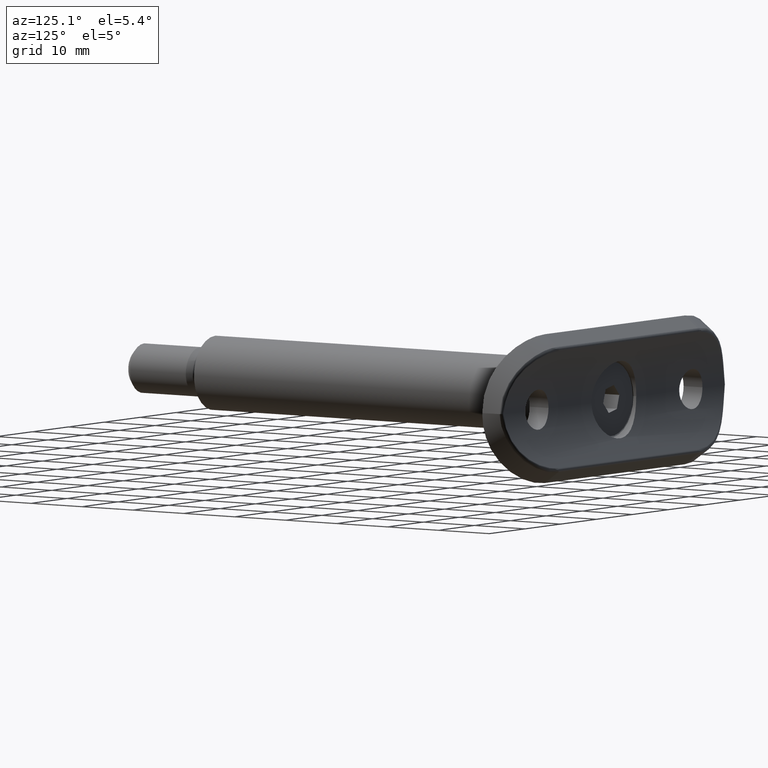
[diagram: clean part render]
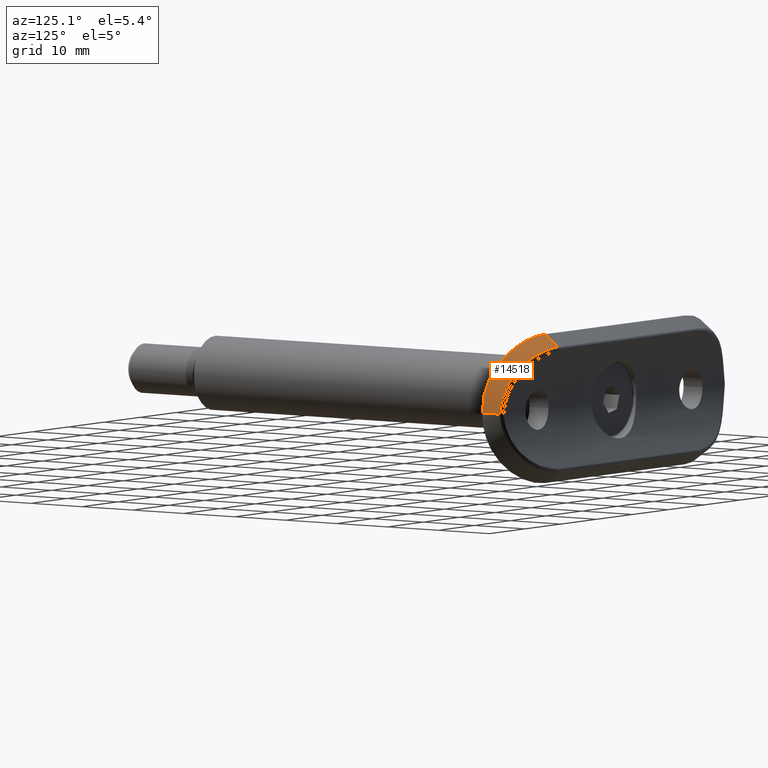
[diagram: same view with one face highlighted and labeled with its STEP entity id]
A machine part, auxiliary view. The second image highlights one B-rep face of the part: STEP entity #14518.
In plain terms, the highlighted cylindrical surface (partial cylindrical patch) has radius 12 mm, axis along (0, 0.8118, -0.5839).
Its self-contained STEP definition (entity closure, byte-faithful):
#63 = EDGE_CURVE ( 'NONE', #77, #2350, #12017, .T. ) ;
#77 = VERTEX_POINT ( 'NONE', #664 ) ;
#664 = CARTESIAN_POINT ( 'NONE',  ( -1.765561944424616200E-015, -0.4537595037555552400, -31.34933095981319400 ) ) ;
#761 = CARTESIAN_POINT ( 'NONE',  ( 9.837107706626532900, 2.578035596462832300, -22.39328904128677100 ) ) ;
#991 = CARTESIAN_POINT ( 'NONE',  ( 10.90931707614188000, -0.5682518415652126900, -25.02295538976314800 ) ) ;
#1107 =( BOUNDED_CURVE ( )  B_SPLINE_CURVE ( 3, ( #11669, #14079, #7178, #10538 ),
 .UNSPECIFIED., .F., .F. ) 
 B_SPLINE_CURVE_WITH_KNOTS ( ( 4, 4 ),
 ( 1.412163945685858100, 1.570796326794896300 ),
 .UNSPECIFIED. ) 
 CURVE ( )  GEOMETRIC_REPRESENTATION_ITEM ( )  RATIONAL_B_SPLINE_CURVE ( ( 1.000000000000000000, 0.9979040797806755200, 0.9979040797806755200, 1.000000000000000000 ) ) 
 REPRESENTATION_ITEM ( '' )  );
#1530 = CARTESIAN_POINT ( 'NONE',  ( 1.447866623082525900, -0.3756902404739376800, -31.09255130478878500 ) ) ;
#1677 = CARTESIAN_POINT ( 'NONE',  ( 0.3660558530732914700, -0.4477592449650887300, -31.30123139863309600 ) ) ;
#2075 = ORIENTED_EDGE ( 'NONE', *, *, #11212, .F. ) ;
#2172 = CARTESIAN_POINT ( 'NONE',  ( 4.407850644025226700, -3.225409069440152300, -30.87018340299276900 ) ) ;
#2350 = VERTEX_POINT ( 'NONE', #3120 ) ;
#2563 = EDGE_CURVE ( 'NONE', #77, #14623, #1107, .T. ) ;
#2701 = VECTOR ( 'NONE', #6541, 999.9999999999998900 ) ;
#2718 = CARTESIAN_POINT ( 'NONE',  ( 1.805319957109091400, -0.3375128656904836700, -31.00432257375955600 ) ) ;
#2772 = CARTESIAN_POINT ( 'NONE',  ( 4.477211699115462900, 0.1761482342743393400, -29.95618376487041300 ) ) ;
#3120 = CARTESIAN_POINT ( 'NONE',  ( 10.12717891536658900, 2.771195106964719800, -19.50000000000000400 ) ) ;
#3369 = CARTESIAN_POINT ( 'NONE',  ( 1.637081255389273500, -3.650515055562292900, -31.44438342167034500 ) ) ;
#3421 = CARTESIAN_POINT ( 'NONE',  ( 11.99999999999999800, 0.1675990936556158400, -20.32542637679249300 ) ) ;
#3948 = CARTESIAN_POINT ( 'NONE',  ( 5.389221191223337600, 0.4474550338448117200, -29.39592279680632800 ) ) ;
#4376 = CARTESIAN_POINT ( 'NONE',  ( 9.727451992068006700, -1.253927504700463900, -27.06368564966891200 ) ) ;
#4427 = CARTESIAN_POINT ( 'NONE',  ( 4.019515070331795700, -3.307021581829336000, -30.98658961672468600 ) ) ;
#4538 = CARTESIAN_POINT ( 'NONE',  ( 11.93188330489362200, 0.1179984964455191200, -21.13619040237307800 ) ) ;
#5133 = CARTESIAN_POINT ( 'NONE',  ( 7.670246256790052900, 1.359910319933143500, -27.23525308564032300 ) ) ;
#5238 = CARTESIAN_POINT ( 'NONE',  ( 9.670500822432899200, 2.470714829862250600, -23.09779996299899500 ) ) ;
#5436 = ORIENTED_EDGE ( 'NONE', *, *, #2563, .F. ) ;
#5615 = CARTESIAN_POINT ( 'NONE',  ( 0.8244347916045266000, -3.699999999999999700, -31.50000000000000000 ) ) ;
#5765 = CARTESIAN_POINT ( 'NONE',  ( 11.44009522695896800, -0.2216732215903579600, -23.50843907464543400 ) ) ;
#5789 = CARTESIAN_POINT ( 'NONE',  ( 11.99999999999999800, 0.1675990936556164000, -19.50000000000000400 ) ) ;
#5799 = DIRECTION ( 'NONE',  ( -0.8117956645423057800, -0.5839416058394163400, 0.0000000000000000000 ) ) ;
#6151 = CARTESIAN_POINT ( 'NONE',  ( 3.523794955830243900, -0.06293353954158373300, -30.43751904557932200 ) ) ;
#6301 = CARTESIAN_POINT ( 'NONE',  ( -1.765561944424616200E-015, -0.4537595037555552400, -31.34933095981319400 ) ) ;
#6354 = CARTESIAN_POINT ( 'NONE',  ( 8.276384315391478500, 1.663297702628007600, -26.36292557208185300 ) ) ;
#6541 = DIRECTION ( 'NONE',  ( -0.5839416058394163400, 0.8117956645423057800, 0.0000000000000000000 ) ) ;
#6784 = CARTESIAN_POINT ( 'NONE',  ( 5.532917837906414800, -2.956163349335260800, -30.46886078951180100 ) ) ;
#6834 = CARTESIAN_POINT ( 'NONE',  ( 7.234194564605609800, -2.387796973345365000, -29.50411977800343500 ) ) ;
#7178 = CARTESIAN_POINT ( 'NONE',  ( -8.799767882859470900E-016, -2.612227290229115700, -31.50000000000000000 ) ) ;
#7248 = EDGE_LOOP ( 'NONE', ( #5436, #10169, #2075, #10547 ) ) ;
#7694 = CARTESIAN_POINT ( 'NONE',  ( 9.906032413744753700, 2.623334164646682800, -22.03821986203081100 ) ) ;
#7993 = CARTESIAN_POINT ( 'NONE',  ( 8.992997745725382700, -1.630207549303576100, -27.97099985454206800 ) ) ;
#8041 = CARTESIAN_POINT ( 'NONE',  ( 9.952719643953837900, -1.130600070060816800, -26.73823856945869800 ) ) ;
#8624 = CARTESIAN_POINT ( 'NONE',  ( 0.7289297493280698600, -0.4307089018704906600, -31.24079200779241500 ) ) ;
#8686 = CARTESIAN_POINT ( 'NONE',  ( 5.677826046268699600, 0.5443253537524666000, -29.18976629026787600 ) ) ;
#8810 = CARTESIAN_POINT ( 'NONE',  ( -1.734723475976807100E-015, -3.699999999999998400, -31.50000000000000000 ) ) ;
#9068 = CARTESIAN_POINT ( 'NONE',  ( 10.57043074677839700, -0.7793199695854748900, -25.73359019163507700 ) ) ;
#9361 = AXIS2_PLACEMENT_3D ( 'NONE', #13522, #12398, #5799 ) ;
#9850 = CARTESIAN_POINT ( 'NONE',  ( 6.501984363770561400, 0.8417677089685812200, -28.53411875496052400 ) ) ;
#10169 = ORIENTED_EDGE ( 'NONE', *, *, #63, .T. ) ;
#10538 = CARTESIAN_POINT ( 'NONE',  ( -1.734723475976807100E-015, -3.699999999999998400, -31.50000000000000000 ) ) ;
#10547 = ORIENTED_EDGE ( 'NONE', *, *, #11654, .F. ) ;
#10999 = CARTESIAN_POINT ( 'NONE',  ( 8.959022801026893700, 2.035262522138844500, -25.13046673744611000 ) ) ;
#11144 = CARTESIAN_POINT ( 'NONE',  ( 10.12717891536658900, 2.771195106964719800, -19.50000000000000400 ) ) ;
#11212 = EDGE_CURVE ( 'NONE', #13258, #2350, #11961, .T. ) ;
#11228 = CARTESIAN_POINT ( 'NONE',  ( 11.99999999999999800, 0.1675990936556164000, -19.50000000000000400 ) ) ;
#11406 = CARTESIAN_POINT ( 'NONE',  ( 6.239551306538205100, -2.742501449227441800, -30.13005912226491700 ) ) ;
#11461 = CARTESIAN_POINT ( 'NONE',  ( 9.248077892315397000, -1.503434791643359200, -27.67913971635069000 ) ) ;
#11654 = EDGE_CURVE ( 'NONE', #14623, #13258, #12936, .T. ) ;
#11669 = CARTESIAN_POINT ( 'NONE',  ( -1.765561944424616200E-015, -0.4537595037555552400, -31.34933095981319400 ) ) ;
#11809 = CYLINDRICAL_SURFACE ( 'NONE', #9361, 11.99999999999999800 ) ;
#11961 = LINE ( 'NONE', #11228, #2701 ) ;
#12001 = CARTESIAN_POINT ( 'NONE',  ( 2.855553897046677400, -0.1948091586493474700, -30.69724926842520000 ) ) ;
#12017 = B_SPLINE_CURVE_WITH_KNOTS ( 'NONE', 3,
 ( #6301, #1677, #8624, #1530, #2718, #12001, #6151, #2772, #14252, #3948, #8686, #9850, #12048, #5133, #13232, #6354, #14453, #10999, #12348, #13476, #5238, #761, #7694, #12198, #12295, #11144 ),
 .UNSPECIFIED., .F., .F.,
 ( 4, 2, 2, 2, 2, 2, 2, 2, 2, 2, 2, 2, 4 ),
 ( 0.0000000000000000000, 0.001104099780465670300, 0.002208199560931341400, 0.004416399121862687100, 0.005520498902328359200, 0.006624598682794031200, 0.008832798243725372600, 0.009936898024191046300, 0.01104099780465672000, 0.01324919736558805700, 0.01435329714605372200, 0.01545739692651938700, 0.01766559648745072800 ),
 .UNSPECIFIED. ) ;
#12048 = CARTESIAN_POINT ( 'NONE',  ( 6.998838513618320400, 1.049969719537179100, -28.04597954356985000 ) ) ;
#12198 = CARTESIAN_POINT ( 'NONE',  ( 10.07148329003814900, 2.733007344359098800, -20.96472306259698800 ) ) ;
#12295 = CARTESIAN_POINT ( 'NONE',  ( 10.12717891536659600, 2.771195106964718900, -20.23807937200531600 ) ) ;
#12348 = CARTESIAN_POINT ( 'NONE',  ( 9.236289791145130900, 2.200570151001626200, -24.47770794052638300 ) ) ;
#12398 = DIRECTION ( 'NONE',  ( -0.5839416058394163400, 0.8117956645423056700, 0.0000000000000000000 ) ) ;
#12472 = CARTESIAN_POINT ( 'NONE',  ( 11.72926870889601000, -0.02404986758217555300, -22.33126104549900100 ) ) ;
#12580 = CARTESIAN_POINT ( 'NONE',  ( 8.164066724082513100, -2.011564943295040700, -28.78423691125917800 ) ) ;
#12634 = CARTESIAN_POINT ( 'NONE',  ( 11.99999999999999800, 0.1675990936556164000, -19.50000000000000400 ) ) ;
#12683 = CARTESIAN_POINT ( 'NONE',  ( 7.556449153321897100, -2.263102672739153200, -29.27418816922520200 ) ) ;
#12736 = FACE_OUTER_BOUND ( 'NONE', #7248, .T. ) ;
#12804 = CARTESIAN_POINT ( 'NONE',  ( -1.734723475976807100E-015, -3.699999999999998400, -31.50000000000000000 ) ) ;
#12936 = B_SPLINE_CURVE_WITH_KNOTS ( 'NONE', 3,
 ( #8810, #5615, #3369, #14991, #13818, #4427, #2172, #6784, #11406, #6834, #12683, #12580, #14947, #7993, #11461, #4376, #8041, #9068, #991, #14890, #5765, #13871, #12472, #4538, #3421, #12634 ),
 .UNSPECIFIED., .F., .F.,
 ( 4, 2, 2, 2, 2, 2, 2, 2, 2, 2, 2, 2, 4 ),
 ( 1.633518085781800900E-019, 0.002442704272823924400, 0.003664056409235887100, 0.004885408545647848900, 0.007328112818471775100, 0.008549464954883741200, 0.009770817091295706500, 0.01099216922770767500, 0.01221352136411963900, 0.01465622563694358500, 0.01587757777335555700, 0.01709892990976753100, 0.01954163418259147500 ),
 .UNSPECIFIED. ) ;
#13232 = CARTESIAN_POINT ( 'NONE',  ( 7.882756202702055700, 1.463412005056865500, -26.95012701642542300 ) ) ;
#13258 = VERTEX_POINT ( 'NONE', #5789 ) ;
#13476 = CARTESIAN_POINT ( 'NONE',  ( 9.572176795097252700, 2.408296295516243900, -23.44905101762005700 ) ) ;
#13522 = CARTESIAN_POINT ( 'NONE',  ( 2.258452025492329700, -6.839700176417379900, -19.50000000000000400 ) ) ;
#13818 = CARTESIAN_POINT ( 'NONE',  ( 3.233250671116525000, -3.447982918228170500, -31.18143250167895200 ) ) ;
#13871 = CARTESIAN_POINT ( 'NONE',  ( 11.64480806118127500, -0.08269767653406766300, -22.72607689744123100 ) ) ;
#14079 = CARTESIAN_POINT ( 'NONE',  ( -1.324869606616121200E-015, -1.527874407682889800, -31.44967150208801600 ) ) ;
#14252 = CARTESIAN_POINT ( 'NONE',  ( 4.786837390412631300, 0.2627379142115400800, -29.78040607774898900 ) ) ;
#14453 = CARTESIAN_POINT ( 'NONE',  ( 8.457785709454665100, 1.759738984517021500, -26.06093233363199600 ) ) ;
#14518 = ADVANCED_FACE ( 'NONE', ( #12736 ), #11809, .T. ) ;
#14623 = VERTEX_POINT ( 'NONE', #12804 ) ;
#14890 = CARTESIAN_POINT ( 'NONE',  ( 11.31942153671303500, -0.3022518972056476600, -23.89640287687041500 ) ) ;
#14947 = CARTESIAN_POINT ( 'NONE',  ( 8.450991300507093100, -1.884268748972088400, -28.52354936809624800 ) ) ;
#14991 = CARTESIAN_POINT ( 'NONE',  ( 2.836642390231767700, -3.507262170905027800, -31.25985753279653100 ) ) ;